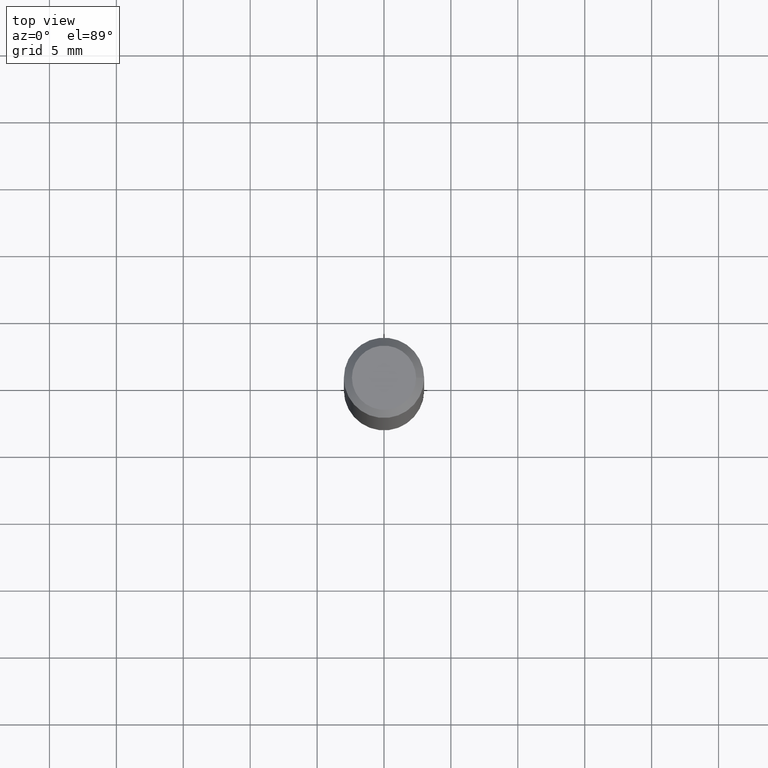
[diagram: clean part render]
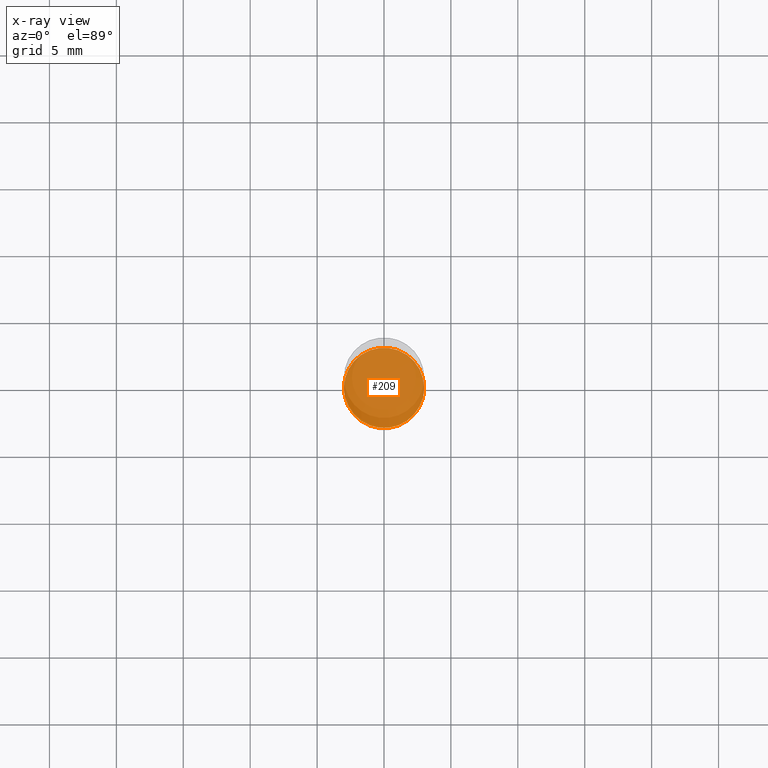
[diagram: x-ray — body ghosted, one internal face saturated and labeled with its STEP entity id]
A machine part, top view, then the same camera in x-ray: the body is ghosted and one INTERNAL B-rep face — a face not visible from any outside direction — is saturated and labeled: STEP entity #209.
In plain terms, the highlighted planar face has unit normal (-0, 0, -1).
Its self-contained STEP definition (entity closure, byte-faithful):
#47 = PLANE ( 'NONE',  #87 ) ;
#48 = DIRECTION ( 'NONE',  ( -1.000000000000000000, 0.0000000000000000000, 6.982962677686266711E-15 ) ) ;
#59 = CARTESIAN_POINT ( 'NONE',  ( -3.072503578181957353E-13, 0.0000000000000000000, -44.00000000000000000 ) ) ;
#80 = CARTESIAN_POINT ( 'NONE',  ( 2.999999999999698908, 0.0000000000000000000, -44.00000000000002132 ) ) ;
#87 = AXIS2_PLACEMENT_3D ( 'NONE', #59, #122, #48 ) ;
#105 = EDGE_CURVE ( 'NONE', #139, #139, #121, .T. ) ;
#114 = CARTESIAN_POINT ( 'NONE',  ( -3.072503578181957353E-13, 0.0000000000000000000, -44.00000000000000000 ) ) ;
#115 = DIRECTION ( 'NONE',  ( -6.982962677686267499E-15, -0.0000000000000000000, -1.000000000000000000 ) ) ;
#121 = CIRCLE ( 'NONE', #169, 3.000000000000006217 ) ;
#122 = DIRECTION ( 'NONE',  ( -6.982962677686266711E-15, 0.0000000000000000000, -1.000000000000000000 ) ) ;
#130 = EDGE_LOOP ( 'NONE', ( #149 ) ) ;
#139 = VERTEX_POINT ( 'NONE', #80 ) ;
#149 = ORIENTED_EDGE ( 'NONE', *, *, #105, .F. ) ;
#169 = AXIS2_PLACEMENT_3D ( 'NONE', #114, #115, #179 ) ;
#179 = DIRECTION ( 'NONE',  ( 1.000000000000000000, 0.0000000000000000000, -6.938893903907214178E-15 ) ) ;
#208 = FACE_OUTER_BOUND ( 'NONE', #130, .T. ) ;
#209 = ADVANCED_FACE ( 'NONE', ( #208 ), #47, .F. ) ;